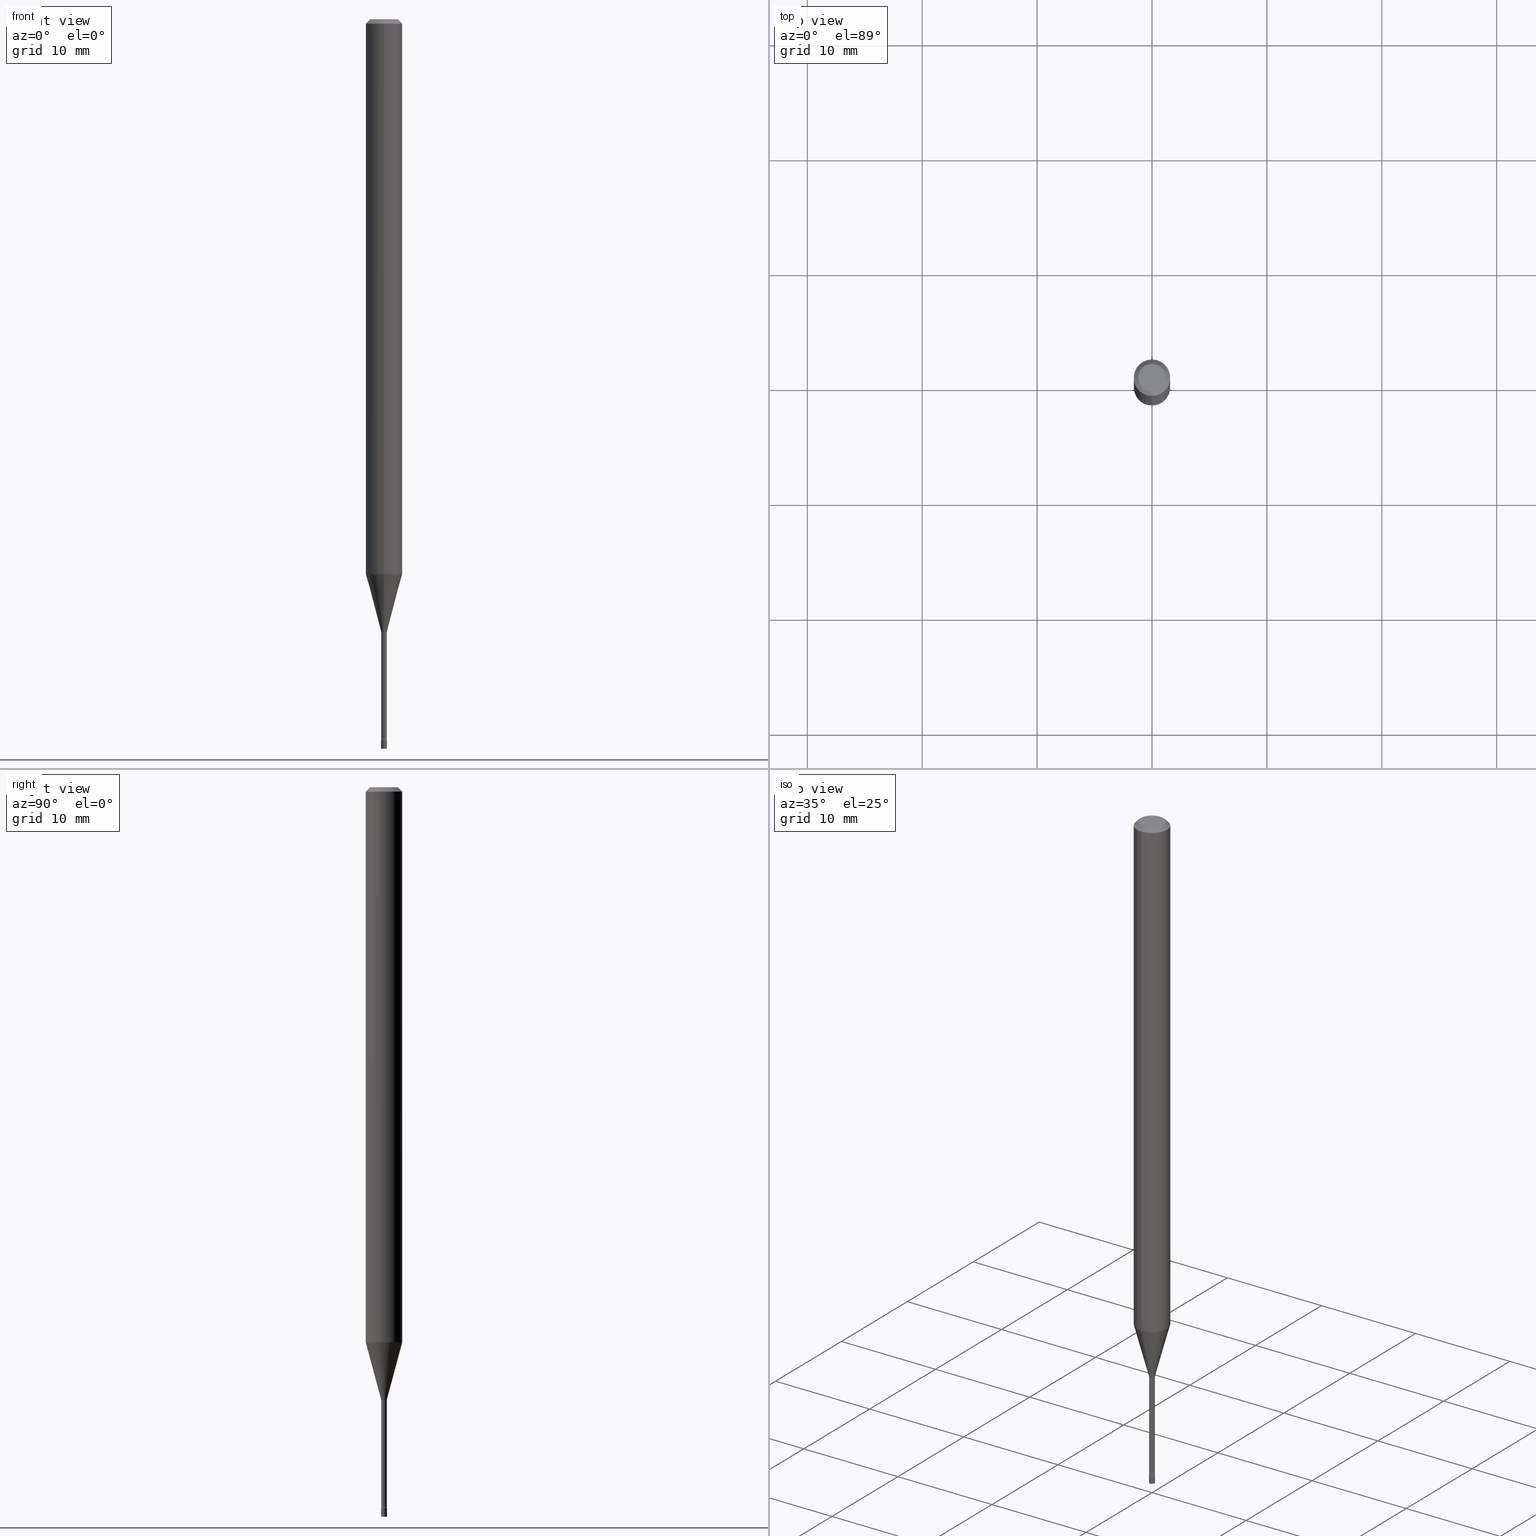
[diagram: canonical four-view strip — front | top / right | iso, engineering-drawing reading convention]
A machine part, canonical four-view strip (front | top / right | iso — engineering-drawing reading convention). The complete STEP part file that produces these views, byte-faithful:
ISO-10303-21;
HEADER;
FILE_DESCRIPTION (( 'STEP AP203' ),
    '1' );
FILE_NAME ('09611.STEP',
    '2024-03-08T23:57:18',
    ( '' ),
    ( '' ),
    'SwSTEP 2.0',
    'SolidWorks 2023',
    '' );
FILE_SCHEMA (( 'CONFIG_CONTROL_DESIGN' ));
ENDSEC;

DATA;
#1 = UNCERTAINTY_MEASURE_WITH_UNIT (LENGTH_MEASURE( 1.000000000000000082E-05 ), #273, 'distance_accuracy_value', 'NONE');
#2 = CARTESIAN_POINT ( 'NONE',  ( -6.563984917019951388E-17, -0.009400000000007339984, -2.101974787463810834 ) ) ;
#3 = DIRECTION ( 'NONE',  ( -2.445468806185136597E-29, 3.491481338843145583E-15, 1.000000000000000000 ) ) ;
#4 = CARTESIAN_POINT ( 'NONE',  ( 0.01000000000000000021, -6.982962677686265724E-17, 4.876176775795935968E-31 ) ) ;
#5 = CIRCLE ( 'NONE', #218, 0.06250000000000000000 ) ;
#6 = VECTOR ( 'NONE', #308, 39.37007874015748143 ) ;
#7 = ORIENTED_EDGE ( 'NONE', *, *, #351, .F. ) ;
#8 = ORIENTED_EDGE ( 'NONE', *, *, #159, .F. ) ;
#9 = EDGE_CURVE ( 'NONE', #446, #299, #5, .T. ) ;
#10 = ORIENTED_EDGE ( 'NONE', *, *, #67, .F. ) ;
#11 = CARTESIAN_POINT ( 'NONE',  ( 5.140456154628203515E-29, -7.338801848172007055E-15, -2.101974787463810834 ) ) ;
#12 = TOROIDAL_SURFACE ( 'NONE', #241, 0.02440000000000000155, 0.01500000000000002373 ) ;
#13 = APPROVAL_PERSON_ORGANIZATION ( #499, #401, #381 ) ;
#14 = FACE_OUTER_BOUND ( 'NONE', #255, .T. ) ;
#15 = CARTESIAN_POINT ( 'NONE',  ( 3.668304814086678845E-31, -5.237076504395302352E-17, -0.01500000000000003067 ) ) ;
#16 = EDGE_LOOP ( 'NONE', ( #85, #252, #212, #250 ) ) ;
#17 = CARTESIAN_POINT ( 'NONE',  ( 6.113672015462842613E-29, -8.728703347107864943E-15, -2.500000000000000000 ) ) ;
#18 = CARTESIAN_POINT ( 'NONE',  ( 0.000000000000000000, 0.000000000000000000, 0.000000000000000000 ) ) ;
#19 = VERTEX_POINT ( 'NONE', #222 ) ;
#20 = APPROVAL_STATUS ( 'not_yet_approved' ) ;
#21 = CARTESIAN_POINT ( 'NONE',  ( 7.105427357607040490E-17, 0.009999999999991376898, -2.470000000000000195 ) ) ;
#22 = ORIENTED_EDGE ( 'NONE', *, *, #309, .T. ) ;
#23 = TOROIDAL_SURFACE ( 'NONE', #518, 0.02440000000000002583, 0.01500000000000000291 ) ;
#24 = CYLINDRICAL_SURFACE ( 'NONE', #46, 0.01000000000000000021 ) ;
#25 = CARTESIAN_POINT ( 'NONE',  ( 3.668304814086678845E-31, -5.237076504395302352E-17, -0.01500000000000003067 ) ) ;
#26 = DATE_TIME_ROLE ( 'creation_date' ) ;
#27 = CARTESIAN_POINT ( 'NONE',  ( 7.042269065260031004E-17, 0.009911112605656658206, -2.098092501787272912 ) ) ;
#28 = ORIENTED_EDGE ( 'NONE', *, *, #288, .F. ) ;
#29 = PRODUCT_DEFINITION ( 'UNKNOWN', '', #208, #354 ) ;
#30 = APPROVAL_ROLE ( '' ) ;
#31 = DIRECTION ( 'NONE',  ( 2.438088387897960049E-29, -3.491481338843145188E-15, -1.000000000000000000 ) ) ;
#32 = CIRCLE ( 'NONE', #320, 0.009911112605663983943 ) ;
#33 = LOCAL_TIME ( 18, 57, 18.00000000000000000, #216 ) ;
#34 = DIRECTION ( 'NONE',  ( -2.445536542724447659E-29, 3.491384336263527933E-15, 1.000000000000000000 ) ) ;
#35 = ADVANCED_FACE ( 'NONE', ( #386 ), #464, .T. ) ;
#36 = DIRECTION ( 'NONE',  ( -2.445536542724447659E-29, 3.491384336263527933E-15, 1.000000000000000000 ) ) ;
#37 = DIRECTION ( 'NONE',  ( -6.982962677686265922E-15, -1.000000000000000000, 0.000000000000000000 ) ) ;
#38 = CARTESIAN_POINT ( 'NONE',  ( 4.440892098500625669E-16, 0.06250000000000000000, -2.182115210164704958E-16 ) ) ;
#39 = SECURITY_CLASSIFICATION ( '', '', #343 ) ;
#40 = FACE_OUTER_BOUND ( 'NONE', #16, .T. ) ;
#41 = CARTESIAN_POINT ( 'NONE',  ( 6.040307951277287977E-29, -8.623958906942569995E-15, -2.470000000000000195 ) ) ;
#42 = EDGE_LOOP ( 'NONE', ( #383, #421, #163, #493 ) ) ;
#43 = ADVANCED_FACE ( 'NONE', ( #278 ), #23, .F. ) ;
#44 = DIRECTION ( 'NONE',  ( -2.445536542724447659E-29, 3.491384336263527933E-15, 1.000000000000000000 ) ) ;
#45 = ORIENTED_EDGE ( 'NONE', *, *, #257, .F. ) ;
#46 = AXIS2_PLACEMENT_3D ( 'NONE', #179, #340, #505 ) ;
#47 = DIRECTION ( 'NONE',  ( 2.445536542724447659E-29, -3.491384336263527933E-15, -1.000000000000000000 ) ) ;
#48 = APPLICATION_CONTEXT ( 'configuration controlled 3d designs of mechanical parts and assemblies' ) ;
#49 = EDGE_CURVE ( 'NONE', #219, #202, #444, .T. ) ;
#50 = ORIENTED_EDGE ( 'NONE', *, *, #419, .T. ) ;
#51 = FACE_OUTER_BOUND ( 'NONE', #377, .T. ) ;
#52 = VERTEX_POINT ( 'NONE', #194 ) ;
#53 = DIRECTION ( 'NONE',  ( -6.982962677686265922E-15, -1.000000000000000000, 3.491384336263527933E-15 ) ) ;
#54 = LINE ( 'NONE', #27, #56 ) ;
#55 = VERTEX_POINT ( 'NONE', #199 ) ;
#56 = VECTOR ( 'NONE', #182, 39.37007874015748854 ) ;
#57 = AXIS2_PLACEMENT_3D ( 'NONE', #269, #117, #439 ) ;
#58 = DIRECTION ( 'NONE',  ( -2.445536542724447659E-29, 3.491384336263527933E-15, 1.000000000000000000 ) ) ;
#59 = ORIENTED_EDGE ( 'NONE', *, *, #309, .F. ) ;
#60 = EDGE_CURVE ( 'NONE', #204, #202, #361, .T. ) ;
#61 = CALENDAR_DATE ( 2024, 8, 3 ) ;
#62 = CARTESIAN_POINT ( 'NONE',  ( 5.140313774130382338E-29, -7.339005745148683013E-15, -2.101974787463810834 ) ) ;
#63 = ORIENTED_EDGE ( 'NONE', *, *, #114, .F. ) ;
#64 = APPROVAL_DATE_TIME ( #422, #140 ) ;
#65 = DIRECTION ( 'NONE',  ( -6.982962677686264344E-15, -1.000000000000000000, 0.000000000000000000 ) ) ;
#66 = ORIENTED_EDGE ( 'NONE', *, *, #211, .T. ) ;
#67 = EDGE_CURVE ( 'NONE', #367, #107, #162, .T. ) ;
#68 = CARTESIAN_POINT ( 'NONE',  ( 0.01000000000000000021, -8.798532973884726663E-15, -2.500000000000000000 ) ) ;
#69 = VERTEX_POINT ( 'NONE', #484 ) ;
#70 = PRODUCT_DEFINITION_SHAPE ( 'NONE', 'NONE',  #29 ) ;
#71 = APPROVAL_DATE_TIME ( #426, #401 ) ;
#72 = DIRECTION ( 'NONE',  ( -2.445536542724447659E-29, 3.491384336263527933E-15, 1.000000000000000000 ) ) ;
#73 = DIRECTION ( 'NONE',  ( -2.445536542724447659E-29, 3.491384336263527933E-15, 1.000000000000000000 ) ) ;
#74 = EDGE_CURVE ( 'NONE', #165, #55, #403, .T. ) ;
#75 = AXIS2_PLACEMENT_3D ( 'NONE', #18, #171, #417 ) ;
#76 = CIRCLE ( 'NONE', #118, 0.01500000000000002373 ) ;
#77 = CARTESIAN_POINT ( 'NONE',  ( 6.892264536879016655E-17, 0.009399999999991416957, -2.465800000000000214 ) ) ;
#78 = CARTESIAN_POINT ( 'NONE',  ( 1.733724275255158309E-16, 0.02439999999999266367, -2.101974787463810834 ) ) ;
#79 = CARTESIAN_POINT ( 'NONE',  ( 5.130961883136935112E-29, -7.325247296772043648E-15, -2.098092501787272912 ) ) ;
#80 = AXIS2_PLACEMENT_3D ( 'NONE', #332, #214, #98 ) ;
#81 = LINE ( 'NONE', #478, #266 ) ;
#82 = AXIS2_PLACEMENT_3D ( 'NONE', #328, #156, #287 ) ;
#83 = EDGE_CURVE ( 'NONE', #374, #132, #441, .T. ) ;
#84 = DIRECTION ( 'NONE',  ( -6.982962677686265922E-15, -1.000000000000000000, 3.491384336263527933E-15 ) ) ;
#85 = ORIENTED_EDGE ( 'NONE', *, *, #310, .F. ) ;
#86 = ADVANCED_FACE ( 'NONE', ( #88 ), #166, .T. ) ;
#87 = CLOSED_SHELL ( 'NONE', ( #120, #483, #495, #174, #155, #35, #225, #389, #86, #203, #365, #43, #457, #149 ) ) ;
#88 = FACE_OUTER_BOUND ( 'NONE', #90, .T. ) ;
#89 = AXIS2_PLACEMENT_3D ( 'NONE', #262, #315, #347 ) ;
#90 = EDGE_LOOP ( 'NONE', ( #319, #157, #410, #172 ) ) ;
#91 = DIRECTION ( 'NONE',  ( -2.445468806185136877E-29, 3.491481338843145188E-15, 1.000000000000000000 ) ) ;
#92 = ORIENTED_EDGE ( 'NONE', *, *, #265, .F. ) ;
#93 = DIRECTION ( 'NONE',  ( -4.851104656540964275E-15, -0.7071067811865500152, -0.7071067811865450192 ) ) ;
#94 = DIRECTION ( 'NONE',  ( 6.982962677686265922E-15, 1.000000000000000000, -3.491384336263527933E-15 ) ) ;
#95 = ORIENTED_EDGE ( 'NONE', *, *, #416, .T. ) ;
#96 = AXIS2_PLACEMENT_3D ( 'NONE', #388, #516, #234 ) ;
#97 = DIRECTION ( 'NONE',  ( -6.982962677686265922E-15, -1.000000000000000000, 3.491384336263528328E-15 ) ) ;
#98 = DIRECTION ( 'NONE',  ( 1.000000000000000000, -6.982962677686235945E-15, 0.000000000000000000 ) ) ;
#99 = ORIENTED_EDGE ( 'NONE', *, *, #67, .T. ) ;
#100 = DIRECTION ( 'NONE',  ( -6.982962677686265922E-15, -1.000000000000000000, 3.483106191921935554E-15 ) ) ;
#101 = EDGE_LOOP ( 'NONE', ( #296, #134 ) ) ;
#102 = FACE_OUTER_BOUND ( 'NONE', #324, .T. ) ;
#103 = EDGE_LOOP ( 'NONE', ( #333, #143, #370, #360 ) ) ;
#104 = APPROVAL_STATUS ( 'not_yet_approved' ) ;
#105 = CC_DESIGN_APPROVAL ( #448, ( #29 ) ) ;
#106 = DIRECTION ( 'NONE',  ( -6.982962677686265922E-15, -1.000000000000000000, 0.000000000000000000 ) ) ;
#107 = VERTEX_POINT ( 'NONE', #368 ) ;
#108 = CARTESIAN_POINT ( 'NONE',  ( 0.000000000000000000, 0.000000000000000000, 0.000000000000000000 ) ) ;
#109 = LINE ( 'NONE', #38, #116 ) ;
#110 = CC_DESIGN_PERSON_AND_ORGANIZATION_ASSIGNMENT ( #331, #316, ( #438 ) ) ;
#111 = VECTOR ( 'NONE', #395, 39.37007874015748143 ) ;
#112 = DIRECTION ( 'NONE',  ( -2.438088387897960049E-29, 3.491481338843145188E-15, 1.000000000000000000 ) ) ;
#113 = DIRECTION ( 'NONE',  ( 1.000000000000000000, -6.982962677686265922E-15, 4.876176775795935793E-29 ) ) ;
#114 = EDGE_CURVE ( 'NONE', #202, #219, #152, .T. ) ;
#115 = DIRECTION ( 'NONE',  ( -6.982962677686265922E-15, -1.000000000000000000, 0.000000000000000000 ) ) ;
#116 = VECTOR ( 'NONE', #268, 39.37007874015748143 ) ;
#117 = DIRECTION ( 'NONE',  ( -2.445536542724447659E-29, 3.491384336263527933E-15, 1.000000000000000000 ) ) ;
#118 = AXIS2_PLACEMENT_3D ( 'NONE', #78, #428, #313 ) ;
#119 = DIRECTION ( 'NONE',  ( -2.445468806185136597E-29, 3.491481338843145583E-15, 1.000000000000000000 ) ) ;
#120 = ADVANCED_FACE ( 'NONE', ( #244 ), #176, .F. ) ;
#121 = CARTESIAN_POINT ( 'NONE',  ( -6.920892941964616469E-17, -0.009911112605671307946, -2.098092501787272912 ) ) ;
#122 = EDGE_CURVE ( 'NONE', #69, #299, #175, .T. ) ;
#123 = ORIENTED_EDGE ( 'NONE', *, *, #471, .F. ) ;
#124 = APPLICATION_CONTEXT ( 'configuration controlled 3d designs of mechanical parts and assemblies' ) ;
#125 = ORIENTED_EDGE ( 'NONE', *, *, #277, .F. ) ;
#126 = LOCAL_TIME ( 18, 57, 18.00000000000000000, #461 ) ;
#127 = ORIENTED_EDGE ( 'NONE', *, *, #60, .F. ) ;
#128 = APPLICATION_PROTOCOL_DEFINITION ( 'international standard', 'config_control_design', 1994, #48 ) ;
#129 = CARTESIAN_POINT ( 'NONE',  ( -0.01000000000000000021, -8.605276853449206598E-15, -2.470000000000000195 ) ) ;
#130 = EDGE_CURVE ( 'NONE', #367, #52, #263, .T. ) ;
#131 = DIRECTION ( 'NONE',  ( -6.982962677686265133E-15, -1.000000000000000000, 0.000000000000000000 ) ) ;
#132 = VERTEX_POINT ( 'NONE', #376 ) ;
#133 = PLANE ( 'NONE',  #254 ) ;
#134 = ORIENTED_EDGE ( 'NONE', *, *, #49, .T. ) ;
#135 = CONICAL_SURFACE ( 'NONE', #206, 0.009911112605663983943, 0.2617993877991500740 ) ;
#136 = AXIS2_PLACEMENT_3D ( 'NONE', #470, #188, #473 ) ;
#137 = PERSON_AND_ORGANIZATION_ROLE ( 'classification_officer' ) ;
#138 = DIRECTION ( 'NONE',  ( 2.445536542724447098E-29, -3.491384336263527933E-15, -1.000000000000000000 ) ) ;
#139 = ORIENTED_EDGE ( 'NONE', *, *, #232, .T. ) ;
#140 = APPROVAL ( #504, 'UNSPECIFIED' ) ;
#141 = COORDINATED_UNIVERSAL_TIME_OFFSET ( 5, 0, .BEHIND. ) ;
#142 = DIRECTION ( 'NONE',  ( -6.982962677686266711E-15, -1.000000000000000000, 3.491384336263528328E-15 ) ) ;
#143 = ORIENTED_EDGE ( 'NONE', *, *, #312, .F. ) ;
#144 = PERSON_AND_ORGANIZATION ( #482, #147 ) ;
#145 = PLANE ( 'NONE',  #197 ) ;
#146 = VERTEX_POINT ( 'NONE', #21 ) ;
#147 = ORGANIZATION ( 'UNSPECIFIED', 'UNSPECIFIED', '' ) ;
#148 = CARTESIAN_POINT ( 'NONE',  ( 5.140456154628203515E-29, -7.338801848172007055E-15, -2.101974787463810834 ) ) ;
#149 = ADVANCED_FACE ( 'NONE', ( #207 ), #12, .F. ) ;
#150 = DIRECTION ( 'NONE',  ( -6.982962677686266711E-15, -1.000000000000000000, 3.491384336263528328E-15 ) ) ;
#151 = DIRECTION ( 'NONE',  ( -6.982962677686265922E-15, -1.000000000000000000, 3.491384336263527933E-15 ) ) ;
#152 = CIRCLE ( 'NONE', #158, 0.01000000000000000021 ) ;
#153 = AXIS2_PLACEMENT_3D ( 'NONE', #267, #193, #408 ) ;
#154 = LINE ( 'NONE', #437, #111 ) ;
#155 = ADVANCED_FACE ( 'NONE', ( #329 ), #496, .T. ) ;
#156 = DIRECTION ( 'NONE',  ( 0.000000000000000000, 0.000000000000000000, 1.000000000000000000 ) ) ;
#157 = ORIENTED_EDGE ( 'NONE', *, *, #416, .F. ) ;
#158 = AXIS2_PLACEMENT_3D ( 'NONE', #164, #282, #424 ) ;
#159 = EDGE_CURVE ( 'NONE', #367, #443, #305, .T. ) ;
#160 = DIRECTION ( 'NONE',  ( -1.807323732225328562E-15, -0.2588190451025179639, 0.9659258262890690894 ) ) ;
#161 = ORIENTED_EDGE ( 'NONE', *, *, #213, .F. ) ;
#162 = LINE ( 'NONE', #121, #280 ) ;
#163 = ORIENTED_EDGE ( 'NONE', *, *, #342, .T. ) ;
#164 = CARTESIAN_POINT ( 'NONE',  ( 6.040307951277287977E-29, -8.623958906942569995E-15, -2.470000000000000195 ) ) ;
#165 = VERTEX_POINT ( 'NONE', #293 ) ;
#166 = CONICAL_SURFACE ( 'NONE', #472, 0.06250000000000000000, 0.7853981633974483900 ) ;
#167 = APPROVAL_PERSON_ORGANIZATION ( #350, #140, #30 ) ;
#168 = CC_DESIGN_PERSON_AND_ORGANIZATION_ASSIGNMENT ( #261, #259, ( #208 ) ) ;
#169 = CARTESIAN_POINT ( 'NONE',  ( 5.140313774130382338E-29, -7.339005745148683013E-15, -2.101974787463810834 ) ) ;
#170 = ORIENTED_EDGE ( 'NONE', *, *, #213, .T. ) ;
#171 = DIRECTION ( 'NONE',  ( -2.445536542724447659E-29, 3.491384336263527933E-15, 1.000000000000000000 ) ) ;
#172 = ORIENTED_EDGE ( 'NONE', *, *, #9, .T. ) ;
#173 = CALENDAR_DATE ( 2024, 8, 3 ) ;
#174 = ADVANCED_FACE ( 'NONE', ( #373 ), #363, .T. ) ;
#175 = LINE ( 'NONE', #409, #498 ) ;
#176 = TOROIDAL_SURFACE ( 'NONE', #314, 0.02440000000000000155, 0.01500000000000002373 ) ;
#177 = EDGE_LOOP ( 'NONE', ( #161, #338, #66, #183 ) ) ;
#178 = APPROVAL_DATE_TIME ( #302, #448 ) ;
#179 = CARTESIAN_POINT ( 'NONE',  ( 0.000000000000000000, 0.000000000000000000, 0.000000000000000000 ) ) ;
#180 = ORIENTED_EDGE ( 'NONE', *, *, #295, .T. ) ;
#181 = PERSON_AND_ORGANIZATION ( #482, #147 ) ;
#182 = DIRECTION ( 'NONE',  ( 1.839019923739598738E-15, 0.2588190451025247363, 0.9659258262890673130 ) ) ;
#183 = ORIENTED_EDGE ( 'NONE', *, *, #489, .F. ) ;
#184 = CALENDAR_DATE ( 2024, 8, 3 ) ;
#185 = CARTESIAN_POINT ( 'NONE',  ( 6.040307951277287977E-29, -8.623958906942569995E-15, -2.470000000000000195 ) ) ;
#186 = CIRCLE ( 'NONE', #80, 0.01000000000000000021 ) ;
#187 = CIRCLE ( 'NONE', #220, 0.01000000000000000021 ) ;
#188 = DIRECTION ( 'NONE',  ( 1.000000000000000000, -7.105427357601001070E-15, 4.926314320603096360E-29 ) ) ;
#189 = DIRECTION ( 'NONE',  ( -6.982962677686265922E-15, -1.000000000000000000, 0.000000000000000000 ) ) ;
#190 = FACE_OUTER_BOUND ( 'NONE', #200, .T. ) ;
#191 = AXIS2_PLACEMENT_3D ( 'NONE', #298, #459, #100 ) ;
#192 = AXIS2_PLACEMENT_3D ( 'NONE', #390, #34, #150 ) ;
#193 = DIRECTION ( 'NONE',  ( -2.445536542724447659E-29, 3.491384336263527933E-15, 1.000000000000000000 ) ) ;
#194 = CARTESIAN_POINT ( 'NONE',  ( 2.572559502513548516E-16, 0.009911112605656658206, -2.098092501787272912 ) ) ;
#195 = ORIENTED_EDGE ( 'NONE', *, *, #265, .T. ) ;
#196 = EDGE_CURVE ( 'NONE', #204, #19, #186, .T. ) ;
#197 = AXIS2_PLACEMENT_3D ( 'NONE', #185, #112, #113 ) ;
#198 = CIRCLE ( 'NONE', #501, 0.01000000000000000021 ) ;
#199 = CARTESIAN_POINT ( 'NONE',  ( -6.982962677680226008E-17, -0.01000000000000862178, -2.470000000000000195 ) ) ;
#200 = EDGE_LOOP ( 'NONE', ( #125, #425, #195, #290 ) ) ;
#201 = CARTESIAN_POINT ( 'NONE',  ( 3.668304814086678845E-31, -5.237076504395302352E-17, -0.01500000000000003067 ) ) ;
#202 = VERTEX_POINT ( 'NONE', #451 ) ;
#203 = ADVANCED_FACE ( 'NONE', ( #102 ), #133, .F. ) ;
#204 = VERTEX_POINT ( 'NONE', #68 ) ;
#205 = CARTESIAN_POINT ( 'NONE',  ( 4.440892098501093562E-16, 0.06249999999999993755, -0.01500000000000024751 ) ) ;
#206 = AXIS2_PLACEMENT_3D ( 'NONE', #420, #58, #65 ) ;
#207 = FACE_OUTER_BOUND ( 'NONE', #286, .T. ) ;
#208 = PRODUCT_DEFINITION_FORMATION_WITH_SPECIFIED_SOURCE ( 'ANY', '', #438, .NOT_KNOWN. ) ;
#209 = ORIENTED_EDGE ( 'NONE', *, *, #310, .T. ) ;
#210 = DIRECTION ( 'NONE',  ( -2.445468806185136597E-29, 3.491481338843145583E-15, 1.000000000000000000 ) ) ;
#211 = EDGE_CURVE ( 'NONE', #299, #446, #372, .T. ) ;
#212 = ORIENTED_EDGE ( 'NONE', *, *, #60, .T. ) ;
#213 = EDGE_CURVE ( 'NONE', #69, #279, #488, .T. ) ;
#214 = DIRECTION ( 'NONE',  ( -2.445468806185136597E-29, 3.491481338843145583E-15, 1.000000000000000000 ) ) ;
#215 = ORIENTED_EDGE ( 'NONE', *, *, #312, .T. ) ;
#216 = COORDINATED_UNIVERSAL_TIME_OFFSET ( 5, 0, .BEHIND. ) ;
#217 = FACE_OUTER_BOUND ( 'NONE', #406, .T. ) ;
#218 = AXIS2_PLACEMENT_3D ( 'NONE', #25, #341, #463 ) ;
#219 = VERTEX_POINT ( 'NONE', #129 ) ;
#220 = AXIS2_PLACEMENT_3D ( 'NONE', #17, #3, #248 ) ;
#221 = DIRECTION ( 'NONE',  ( -2.445536542724447659E-29, 3.491384336263527933E-15, 1.000000000000000000 ) ) ;
#222 = CARTESIAN_POINT ( 'NONE',  ( -0.01000000000000000021, -8.605276853449206598E-15, -2.500000000000000000 ) ) ;
#223 = PERSON_AND_ORGANIZATION_ROLE ( 'design_supplier' ) ;
#224 = PLANE ( 'NONE',  #96 ) ;
#225 = ADVANCED_FACE ( 'NONE', ( #251 ), #135, .T. ) ;
#226 = DATE_AND_TIME ( #61, #126 ) ;
#227 = DIRECTION ( 'NONE',  ( -6.982962677686265922E-15, -1.000000000000000000, 0.000000000000000000 ) ) ;
#228 = VECTOR ( 'NONE', #91, 39.37007874015748143 ) ;
#229 = ADVANCED_FACE ( 'NONE', ( #217 ), #24, .T. ) ;
#230 = FACE_OUTER_BOUND ( 'NONE', #101, .T. ) ;
#231 = EDGE_CURVE ( 'NONE', #456, #107, #511, .T. ) ;
#232 = EDGE_CURVE ( 'NONE', #52, #456, #54, .T. ) ;
#233 = CC_DESIGN_PERSON_AND_ORGANIZATION_ASSIGNMENT ( #144, #137, ( #39 ) ) ;
#234 = DIRECTION ( 'NONE',  ( -6.982962677686265922E-15, -1.000000000000000000, 3.491384336263527933E-15 ) ) ;
#235 = CARTESIAN_POINT ( 'NONE',  ( 6.030204007049943435E-29, -8.609055496358607345E-15, -2.465800000000000214 ) ) ;
#236 = AXIS2_PLACEMENT_3D ( 'NONE', #379, #382, #337 ) ;
#237 = CIRCLE ( 'NONE', #264, 0.009400000000000002104 ) ;
#238 = CYLINDRICAL_SURFACE ( 'NONE', #57, 0.009400000000000012512 ) ;
#239 = CARTESIAN_POINT ( 'NONE',  ( 6.679101716144950638E-17, 0.009400000000000012512, -3.281901276087720893E-17 ) ) ;
#240 = ORIENTED_EDGE ( 'NONE', *, *, #396, .F. ) ;
#241 = AXIS2_PLACEMENT_3D ( 'NONE', #169, #249, #253 ) ;
#242 = EDGE_LOOP ( 'NONE', ( #442, #139, #418, #10 ) ) ;
#243 =( NAMED_UNIT ( * ) SI_UNIT ( $, .STERADIAN. ) SOLID_ANGLE_UNIT ( ) );
#244 = FACE_OUTER_BOUND ( 'NONE', #467, .T. ) ;
#245 = AXIS2_PLACEMENT_3D ( 'NONE', #514, #31, #508 ) ;
#246 = ORIENTED_EDGE ( 'NONE', *, *, #159, .T. ) ;
#247 = CC_DESIGN_PERSON_AND_ORGANIZATION_ASSIGNMENT ( #181, #223, ( #208 ) ) ;
#248 = DIRECTION ( 'NONE',  ( 1.000000000000000000, -6.982962677686235945E-15, 0.000000000000000000 ) ) ;
#249 = DIRECTION ( 'NONE',  ( -2.445536542724447659E-29, 3.491384336263527933E-15, 1.000000000000000000 ) ) ;
#250 = ORIENTED_EDGE ( 'NONE', *, *, #49, .F. ) ;
#251 = FACE_OUTER_BOUND ( 'NONE', #460, .T. ) ;
#252 = ORIENTED_EDGE ( 'NONE', *, *, #471, .T. ) ;
#253 = DIRECTION ( 'NONE',  ( -6.982962677686265922E-15, -1.000000000000000000, 3.491384336263527933E-15 ) ) ;
#254 = AXIS2_PLACEMENT_3D ( 'NONE', #455, #138, #94 ) ;
#255 = EDGE_LOOP ( 'NONE', ( #215, #503, #59, #414 ) ) ;
#256 = CALENDAR_DATE ( 2024, 8, 3 ) ;
#257 = EDGE_CURVE ( 'NONE', #374, #165, #348, .T. ) ;
#258 = LINE ( 'NONE', #435, #6 ) ;
#259 = PERSON_AND_ORGANIZATION_ROLE ( 'creator' ) ;
#260 = CARTESIAN_POINT ( 'NONE',  ( -6.920892941964616469E-17, -0.009911112605671307946, -2.098092501787272912 ) ) ;
#261 = PERSON_AND_ORGANIZATION ( #482, #147 ) ;
#262 = CARTESIAN_POINT ( 'NONE',  ( 6.040475260529386236E-29, -8.623719310570914180E-15, -2.470000000000000195 ) ) ;
#263 = CIRCLE ( 'NONE', #236, 0.009911112605663983943 ) ;
#264 = AXIS2_PLACEMENT_3D ( 'NONE', #11, #291, #115 ) ;
#265 = EDGE_CURVE ( 'NONE', #107, #299, #154, .T. ) ;
#266 = VECTOR ( 'NONE', #317, 39.37007874015748143 ) ;
#267 = CARTESIAN_POINT ( 'NONE',  ( 4.650990121710079435E-29, -6.640012846000903437E-15, -1.901828102118093167 ) ) ;
#268 = DIRECTION ( 'NONE',  ( -2.445536542724447659E-29, 3.491384336263527933E-15, 1.000000000000000000 ) ) ;
#269 = CARTESIAN_POINT ( 'NONE',  ( 0.000000000000000000, 0.000000000000000000, 0.000000000000000000 ) ) ;
#270 = DIRECTION ( 'NONE',  ( -2.445536542724447659E-29, 3.491384336263527933E-15, 1.000000000000000000 ) ) ;
#271 = AXIS2_PLACEMENT_3D ( 'NONE', #385, #221, #462 ) ;
#272 = CIRCLE ( 'NONE', #349, 0.009400000000000024655 ) ;
#273 =( CONVERSION_BASED_UNIT ( 'INCH', #375 ) LENGTH_UNIT ( ) NAMED_UNIT ( #515 ) );
#274 = ADVANCED_FACE ( 'NONE', ( #230 ), #145, .T. ) ;
#275 = DIRECTION ( 'NONE',  ( 1.000000000000000000, -6.982962677686235945E-15, 0.000000000000000000 ) ) ;
#276 = DIRECTION ( 'NONE',  ( -1.000000000000000000, 6.982962677686265922E-15, -4.883557194083112901E-29 ) ) ;
#277 = EDGE_CURVE ( 'NONE', #456, #446, #109, .T. ) ;
#278 = FACE_OUTER_BOUND ( 'NONE', #103, .T. ) ;
#279 = VERTEX_POINT ( 'NONE', #432 ) ;
#280 = VECTOR ( 'NONE', #160, 39.37007874015748854 ) ;
#281 = CIRCLE ( 'NONE', #364, 0.009400000000000002104 ) ;
#282 = DIRECTION ( 'NONE',  ( -2.445468806185136597E-29, 3.491481338843145583E-15, 1.000000000000000000 ) ) ;
#283 = ORIENTED_EDGE ( 'NONE', *, *, #196, .F. ) ;
#284 = MECHANICAL_CONTEXT ( 'NONE', #48, 'mechanical' ) ;
#285 = DIRECTION ( 'NONE',  ( -1.000000000000000000, 6.982962677686265922E-15, -4.883557194083112901E-29 ) ) ;
#286 = EDGE_LOOP ( 'NONE', ( #240, #487, #246, #22 ) ) ;
#287 = DIRECTION ( 'NONE',  ( 1.000000000000000000, 0.000000000000000000, 0.000000000000000000 ) ) ;
#288 = EDGE_CURVE ( 'NONE', #52, #367, #32, .T. ) ;
#289 = CARTESIAN_POINT ( 'NONE',  ( 7.072129387646011672E-46, -1.009656626948158031E-31, -2.891851855040085948E-17 ) ) ;
#290 = ORIENTED_EDGE ( 'NONE', *, *, #9, .F. ) ;
#291 = DIRECTION ( 'NONE',  ( -2.445536542724447659E-29, 3.491384336263527933E-15, 1.000000000000000000 ) ) ;
#292 = AXIS2_PLACEMENT_3D ( 'NONE', #322, #276, #486 ) ;
#293 = CARTESIAN_POINT ( 'NONE',  ( -6.563984917019076245E-17, -0.009400000000008634088, -2.465800000000000214 ) ) ;
#294 = AXIS2_PLACEMENT_3D ( 'NONE', #447, #450, #97 ) ;
#295 = EDGE_CURVE ( 'NONE', #146, #55, #431, .T. ) ;
#296 = ORIENTED_EDGE ( 'NONE', *, *, #114, .T. ) ;
#297 = DATE_AND_TIME ( #507, #356 ) ;
#298 = CARTESIAN_POINT ( 'NONE',  ( 3.668304814086678845E-31, -5.237076504395302352E-17, -0.01500000000000003067 ) ) ;
#299 = VERTEX_POINT ( 'NONE', #304 ) ;
#300 = DIRECTION ( 'NONE',  ( -2.445536542724447659E-29, 3.491384336263527933E-15, 1.000000000000000000 ) ) ;
#301 = ORIENTED_EDGE ( 'NONE', *, *, #430, .T. ) ;
#302 = DATE_AND_TIME ( #173, #33 ) ;
#303 = ADVANCED_FACE ( 'NONE', ( #475 ), #344, .T. ) ;
#304 = CARTESIAN_POINT ( 'NONE',  ( -4.364351673553912750E-16, -0.06250000000000005551, -0.01499999999999981209 ) ) ;
#305 = CIRCLE ( 'NONE', #480, 0.01500000000000002373 ) ;
#306 = ORIENTED_EDGE ( 'NONE', *, *, #396, .T. ) ;
#307 = LOCAL_TIME ( 18, 57, 18.00000000000000000, #458 ) ;
#308 = DIRECTION ( 'NONE',  ( -2.445536542724447659E-29, 3.491384336263527933E-15, 1.000000000000000000 ) ) ;
#309 = EDGE_CURVE ( 'NONE', #443, #132, #281, .T. ) ;
#310 = EDGE_CURVE ( 'NONE', #19, #219, #513, .T. ) ;
#311 = CARTESIAN_POINT ( 'NONE',  ( 6.030204007049943435E-29, -8.609055496358607345E-15, -2.465800000000000214 ) ) ;
#312 = EDGE_CURVE ( 'NONE', #165, #374, #272, .T. ) ;
#313 = DIRECTION ( 'NONE',  ( 7.105427357600999492E-15, 1.000000000000000000, 0.000000000000000000 ) ) ;
#314 = AXIS2_PLACEMENT_3D ( 'NONE', #62, #300, #492 ) ;
#315 = DIRECTION ( 'NONE',  ( -2.445536542724447659E-29, 3.491384336263527933E-15, 1.000000000000000000 ) ) ;
#316 = PERSON_AND_ORGANIZATION_ROLE ( 'design_owner' ) ;
#317 = DIRECTION ( 'NONE',  ( 4.937700262164548042E-15, 0.7071067811865451302, -0.7071067811865499042 ) ) ;
#318 = DIRECTION ( 'NONE',  ( -6.982962677686264344E-15, -1.000000000000000000, 0.000000000000000000 ) ) ;
#319 = ORIENTED_EDGE ( 'NONE', *, *, #122, .F. ) ;
#320 = AXIS2_PLACEMENT_3D ( 'NONE', #79, #393, #519 ) ;
#321 = CC_DESIGN_APPROVAL ( #140, ( #39 ) ) ;
#322 = CARTESIAN_POINT ( 'NONE',  ( -1.703842893354847853E-16, -0.02440000000000863700, -2.465800000000000214 ) ) ;
#323 = CC_DESIGN_DATE_AND_TIME_ASSIGNMENT ( #297, #26, ( #29 ) ) ;
#324 = EDGE_LOOP ( 'NONE', ( #95, #170 ) ) ;
#325 =( LENGTH_UNIT ( ) NAMED_UNIT ( * ) SI_UNIT ( $, .METRE. ) );
#326 = VECTOR ( 'NONE', #402, 39.37007874015748143 ) ;
#327 = EDGE_LOOP ( 'NONE', ( #7, #380 ) ) ;
#328 = CARTESIAN_POINT ( 'NONE',  ( 0.000000000000000000, 0.000000000000000000, 0.000000000000000000 ) ) ;
#329 = FACE_OUTER_BOUND ( 'NONE', #400, .T. ) ;
#330 = ORIENTED_EDGE ( 'NONE', *, *, #196, .T. ) ;
#331 = PERSON_AND_ORGANIZATION ( #482, #147 ) ;
#332 = CARTESIAN_POINT ( 'NONE',  ( 6.113672015462842613E-29, -8.728703347107864943E-15, -2.500000000000000000 ) ) ;
#333 = ORIENTED_EDGE ( 'NONE', *, *, #419, .F. ) ;
#334 = PERSON_AND_ORGANIZATION_ROLE ( 'creator' ) ;
#335 = CLOSED_SHELL ( 'NONE', ( #229, #274, #517, #303 ) ) ;
#336 = CC_DESIGN_SECURITY_CLASSIFICATION ( #39, ( #208 ) ) ;
#337 = DIRECTION ( 'NONE',  ( -6.982962677686264344E-15, -1.000000000000000000, 0.000000000000000000 ) ) ;
#338 = ORIENTED_EDGE ( 'NONE', *, *, #122, .T. ) ;
#339 = COORDINATED_UNIVERSAL_TIME_OFFSET ( 5, 0, .BEHIND. ) ;
#340 = DIRECTION ( 'NONE',  ( -2.445468806185136597E-29, 3.491481338843145583E-15, 1.000000000000000000 ) ) ;
#341 = DIRECTION ( 'NONE',  ( -2.445536542724447659E-29, 3.491384336263527933E-15, 1.000000000000000000 ) ) ;
#342 = EDGE_CURVE ( 'NONE', #165, #443, #258, .T. ) ;
#343 = SECURITY_CLASSIFICATION_LEVEL ( 'unclassified' ) ;
#344 = PLANE ( 'NONE',  #245 ) ;
#345 = ORIENTED_EDGE ( 'NONE', *, *, #74, .F. ) ;
#346 = SHAPE_DEFINITION_REPRESENTATION ( #70, #440 ) ;
#347 = DIRECTION ( 'NONE',  ( -6.982962677686265922E-15, -1.000000000000000000, 0.000000000000000000 ) ) ;
#348 = CIRCLE ( 'NONE', #433, 0.009400000000000024655 ) ;
#349 = AXIS2_PLACEMENT_3D ( 'NONE', #311, #73, #227 ) ;
#350 = PERSON_AND_ORGANIZATION ( #482, #147 ) ;
#351 = EDGE_CURVE ( 'NONE', #55, #146, #198, .T. ) ;
#352 = CARTESIAN_POINT ( 'NONE',  ( -0.01000000000000000021, 7.105427357601002007E-17, -4.918935090254906272E-31 ) ) ;
#353 = FACE_OUTER_BOUND ( 'NONE', #327, .T. ) ;
#354 = DESIGN_CONTEXT ( 'detailed design', #124, 'design' ) ;
#355 = DIRECTION ( 'NONE',  ( -2.445536542724447659E-29, 3.491384336263527933E-15, 1.000000000000000000 ) ) ;
#356 = LOCAL_TIME ( 18, 57, 18.00000000000000000, #339 ) ;
#357 = CARTESIAN_POINT ( 'NONE',  ( 6.030036982291310238E-29, -8.609294685319429365E-15, -2.465800000000000214 ) ) ;
#358 = CC_DESIGN_PERSON_AND_ORGANIZATION_ASSIGNMENT ( #384, #334, ( #29 ) ) ;
#359 =( NAMED_UNIT ( * ) PLANE_ANGLE_UNIT ( ) SI_UNIT ( $, .RADIAN. ) );
#360 = ORIENTED_EDGE ( 'NONE', *, *, #351, .T. ) ;
#361 = LINE ( 'NONE', #4, #228 ) ;
#362 = EDGE_LOOP ( 'NONE', ( #283, #123 ) ) ;
#363 = CONICAL_SURFACE ( 'NONE', #423, 0.06250000000000000000, 0.7853981633974483900 ) ;
#364 = AXIS2_PLACEMENT_3D ( 'NONE', #148, #466, #189 ) ;
#365 = ADVANCED_FACE ( 'NONE', ( #353 ), #224, .F. ) ;
#366 = DIRECTION ( 'NONE',  ( 6.982962677686265922E-15, 1.000000000000000000, -3.483106191921935554E-15 ) ) ;
#367 = VERTEX_POINT ( 'NONE', #260 ) ;
#368 = CARTESIAN_POINT ( 'NONE',  ( -4.364351673553451266E-16, -0.06250000000000664746, -1.901828102118092945 ) ) ;
#369 = CYLINDRICAL_SURFACE ( 'NONE', #294, 0.009400000000000012512 ) ;
#370 = ORIENTED_EDGE ( 'NONE', *, *, #74, .T. ) ;
#371 = CYLINDRICAL_SURFACE ( 'NONE', #500, 0.01000000000000000021 ) ;
#372 = CIRCLE ( 'NONE', #191, 0.06250000000000000000 ) ;
#373 = FACE_OUTER_BOUND ( 'NONE', #177, .T. ) ;
#374 = VERTEX_POINT ( 'NONE', #77 ) ;
#375 = LENGTH_MEASURE_WITH_UNIT ( LENGTH_MEASURE( 0.02539999999999999897 ), #325 );
#376 = CARTESIAN_POINT ( 'NONE',  ( 6.679101716150981726E-17, 0.009399999999992662489, -2.101974787463810834 ) ) ;
#377 = EDGE_LOOP ( 'NONE', ( #45, #50, #180, #345 ) ) ;
#378 = APPROVAL_ROLE ( '' ) ;
#379 = CARTESIAN_POINT ( 'NONE',  ( 5.130961883136935112E-29, -7.325247296772043648E-15, -2.098092501787272912 ) ) ;
#380 = ORIENTED_EDGE ( 'NONE', *, *, #295, .F. ) ;
#381 = APPROVAL_ROLE ( '' ) ;
#382 = DIRECTION ( 'NONE',  ( -2.445536542724447659E-29, 3.491384336263527933E-15, 1.000000000000000000 ) ) ;
#383 = ORIENTED_EDGE ( 'NONE', *, *, #83, .F. ) ;
#384 = PERSON_AND_ORGANIZATION ( #482, #147 ) ;
#385 = CARTESIAN_POINT ( 'NONE',  ( 4.650990121710079435E-29, -6.640012846000903437E-15, -1.901828102118093167 ) ) ;
#386 = FACE_OUTER_BOUND ( 'NONE', #242, .T. ) ;
#387 = DATE_TIME_ROLE ( 'classification_date' ) ;
#388 = CARTESIAN_POINT ( 'NONE',  ( 6.982962677692306673E-17, 0.009999999999991375163, -2.470000000000000195 ) ) ;
#389 = ADVANCED_FACE ( 'NONE', ( #190 ), #469, .T. ) ;
#390 = CARTESIAN_POINT ( 'NONE',  ( 7.072129387646011672E-46, -1.009656626948158031E-31, -2.891851855040085948E-17 ) ) ;
#391 = AXIS2_PLACEMENT_3D ( 'NONE', #429, #270, #318 ) ;
#392 = CIRCLE ( 'NONE', #136, 0.01500000000000000638 ) ;
#393 = DIRECTION ( 'NONE',  ( -2.445536542724447659E-29, 3.491384336263527933E-15, 1.000000000000000000 ) ) ;
#394 = DIRECTION ( 'NONE',  ( -2.445468806185136877E-29, 3.491481338843145188E-15, 1.000000000000000000 ) ) ;
#395 = DIRECTION ( 'NONE',  ( -2.445536542724447659E-29, 3.491384336263527933E-15, 1.000000000000000000 ) ) ;
#396 = EDGE_CURVE ( 'NONE', #52, #132, #76, .T. ) ;
#397 = TOROIDAL_SURFACE ( 'NONE', #412, 0.02440000000000002583, 0.01500000000000000291 ) ;
#398 = DIRECTION ( 'NONE',  ( -2.445536542724447659E-29, 3.491384336263527933E-15, 1.000000000000000000 ) ) ;
#399 = MANIFOLD_SOLID_BREP ( 'Body-Move/Copy2[1]', #335 ) ;
#400 = EDGE_LOOP ( 'NONE', ( #301, #452, #407, #92 ) ) ;
#401 = APPROVAL ( #104, 'UNSPECIFIED' ) ;
#402 = DIRECTION ( 'NONE',  ( -2.445536542724447659E-29, 3.491384336263527933E-15, 1.000000000000000000 ) ) ;
#403 = CIRCLE ( 'NONE', #292, 0.01499999999999999771 ) ;
#404 = CIRCLE ( 'NONE', #192, 0.04749999999999999362 ) ;
#405 = MANIFOLD_SOLID_BREP ( 'Body-Move/Copy2[2]', #87 ) ;
#406 = EDGE_LOOP ( 'NONE', ( #330, #209, #63, #127 ) ) ;
#407 = ORIENTED_EDGE ( 'NONE', *, *, #211, .F. ) ;
#408 = DIRECTION ( 'NONE',  ( -6.982962677686265922E-15, -1.000000000000000000, 4.370956789862821150E-15 ) ) ;
#409 = CARTESIAN_POINT ( 'NONE',  ( -4.287811248607203282E-16, -0.06250000000000005551, -0.01499999999999981209 ) ) ;
#410 = ORIENTED_EDGE ( 'NONE', *, *, #489, .T. ) ;
#411 = AXIS2_PLACEMENT_3D ( 'NONE', #41, #119, #275 ) ;
#412 = AXIS2_PLACEMENT_3D ( 'NONE', #357, #398, #53 ) ;
#413 = DIRECTION ( 'NONE',  ( -2.445536542724447659E-29, 3.491384336263527933E-15, 1.000000000000000000 ) ) ;
#414 = ORIENTED_EDGE ( 'NONE', *, *, #342, .F. ) ;
#415 = CARTESIAN_POINT ( 'NONE',  ( 0.000000000000000000, 0.000000000000000000, 0.000000000000000000 ) ) ;
#416 = EDGE_CURVE ( 'NONE', #279, #69, #404, .T. ) ;
#417 = DIRECTION ( 'NONE',  ( -6.982962677686265922E-15, -1.000000000000000000, 3.491384336263527933E-15 ) ) ;
#418 = ORIENTED_EDGE ( 'NONE', *, *, #430, .F. ) ;
#419 = EDGE_CURVE ( 'NONE', #374, #146, #392, .T. ) ;
#420 = CARTESIAN_POINT ( 'NONE',  ( 5.130961883136935112E-29, -7.325247296772043648E-15, -2.098092501787272912 ) ) ;
#421 = ORIENTED_EDGE ( 'NONE', *, *, #257, .T. ) ;
#422 = DATE_AND_TIME ( #184, #474 ) ;
#423 = AXIS2_PLACEMENT_3D ( 'NONE', #15, #490, #502 ) ;
#424 = DIRECTION ( 'NONE',  ( 1.000000000000000000, -6.982962677686235945E-15, 0.000000000000000000 ) ) ;
#425 = ORIENTED_EDGE ( 'NONE', *, *, #231, .T. ) ;
#426 = DATE_AND_TIME ( #256, #307 ) ;
#427 = CARTESIAN_POINT ( 'NONE',  ( 6.040475260529386236E-29, -8.623719310570914180E-15, -2.470000000000000195 ) ) ;
#428 = DIRECTION ( 'NONE',  ( 1.000000000000000000, -7.105427357601001070E-15, 4.926314320603096360E-29 ) ) ;
#429 = CARTESIAN_POINT ( 'NONE',  ( 5.130961883136935112E-29, -7.325247296772043648E-15, -2.098092501787272912 ) ) ;
#430 = EDGE_CURVE ( 'NONE', #107, #456, #434, .T. ) ;
#431 = CIRCLE ( 'NONE', #89, 0.01000000000000000021 ) ;
#432 = CARTESIAN_POINT ( 'NONE',  ( 3.840629472727447874E-16, 0.04749999999999999362, -1.947592745229184365E-16 ) ) ;
#433 = AXIS2_PLACEMENT_3D ( 'NONE', #235, #36, #106 ) ;
#434 = CIRCLE ( 'NONE', #153, 0.06250000000000000000 ) ;
#435 = CARTESIAN_POINT ( 'NONE',  ( -6.563984917025098705E-17, -0.009400000000000012512, 3.281901276087720893E-17 ) ) ;
#436 = CC_DESIGN_DATE_AND_TIME_ASSIGNMENT ( #226, #387, ( #39 ) ) ;
#437 = CARTESIAN_POINT ( 'NONE',  ( -4.364351673553916201E-16, -0.06250000000000000000, 2.182115210164704958E-16 ) ) ;
#438 = PRODUCT ( '09611', '09611', '', ( #284 ) ) ;
#439 = DIRECTION ( 'NONE',  ( -6.982962677686265922E-15, -1.000000000000000000, 3.491384336263528328E-15 ) ) ;
#440 = ADVANCED_BREP_SHAPE_REPRESENTATION ( '09611', ( #399, #405, #82 ), #481 ) ;
#441 = LINE ( 'NONE', #239, #326 ) ;
#442 = ORIENTED_EDGE ( 'NONE', *, *, #130, .T. ) ;
#443 = VERTEX_POINT ( 'NONE', #2 ) ;
#444 = CIRCLE ( 'NONE', #411, 0.01000000000000000021 ) ;
#445 = APPROVAL_PERSON_ORGANIZATION ( #468, #448, #378 ) ;
#446 = VERTEX_POINT ( 'NONE', #205 ) ;
#447 = CARTESIAN_POINT ( 'NONE',  ( 0.000000000000000000, 0.000000000000000000, 0.000000000000000000 ) ) ;
#448 = APPROVAL ( #20, 'UNSPECIFIED' ) ;
#449 = CARTESIAN_POINT ( 'NONE',  ( -1.703842893354934874E-16, -0.02440000000000733943, -2.101974787463810834 ) ) ;
#450 = DIRECTION ( 'NONE',  ( -2.445536542724447659E-29, 3.491384336263527933E-15, 1.000000000000000000 ) ) ;
#451 = CARTESIAN_POINT ( 'NONE',  ( 0.01000000000000000021, -8.693788533719433294E-15, -2.470000000000000195 ) ) ;
#452 = ORIENTED_EDGE ( 'NONE', *, *, #277, .T. ) ;
#453 = DIRECTION ( 'NONE',  ( 1.000000000000000000, -6.982962677686265922E-15, 4.876176775795935793E-29 ) ) ;
#454 = AXIS2_PLACEMENT_3D ( 'NONE', #289, #413, #142 ) ;
#455 = CARTESIAN_POINT ( 'NONE',  ( 3.316907271900976096E-16, 0.04749999999999999362, -1.803000152477179914E-16 ) ) ;
#456 = VERTEX_POINT ( 'NONE', #491 ) ;
#457 = ADVANCED_FACE ( 'NONE', ( #494 ), #369, .T. ) ;
#458 = COORDINATED_UNIVERSAL_TIME_OFFSET ( 5, 0, .BEHIND. ) ;
#459 = DIRECTION ( 'NONE',  ( -2.445536542724447659E-29, 3.491384336263527933E-15, 1.000000000000000000 ) ) ;
#460 = EDGE_LOOP ( 'NONE', ( #485, #506, #99, #509 ) ) ;
#461 = COORDINATED_UNIVERSAL_TIME_OFFSET ( 5, 0, .BEHIND. ) ;
#462 = DIRECTION ( 'NONE',  ( -6.982962677686265922E-15, -1.000000000000000000, 4.370956789862821150E-15 ) ) ;
#463 = DIRECTION ( 'NONE',  ( -6.982962677686265922E-15, -1.000000000000000000, 3.483106191921935554E-15 ) ) ;
#464 = CONICAL_SURFACE ( 'NONE', #391, 0.009911112605663983943, 0.2617993877991500740 ) ;
#465 = AXIS2_PLACEMENT_3D ( 'NONE', #108, #355, #151 ) ;
#466 = DIRECTION ( 'NONE',  ( -2.445536542724447659E-29, 3.491384336263527933E-15, 1.000000000000000000 ) ) ;
#467 = EDGE_LOOP ( 'NONE', ( #28, #306, #497, #8 ) ) ;
#468 = PERSON_AND_ORGANIZATION ( #482, #147 ) ;
#469 = CYLINDRICAL_SURFACE ( 'NONE', #465, 0.06250000000000000000 ) ;
#470 = CARTESIAN_POINT ( 'NONE',  ( 1.733724275255249028E-16, 0.02439999999999141814, -2.465800000000000214 ) ) ;
#471 = EDGE_CURVE ( 'NONE', #19, #204, #187, .T. ) ;
#472 = AXIS2_PLACEMENT_3D ( 'NONE', #201, #47, #366 ) ;
#473 = DIRECTION ( 'NONE',  ( 7.105427357600997914E-15, 1.000000000000000000, 0.000000000000000000 ) ) ;
#474 = LOCAL_TIME ( 18, 57, 18.00000000000000000, #141 ) ;
#475 = FACE_OUTER_BOUND ( 'NONE', #362, .T. ) ;
#476 = APPLICATION_PROTOCOL_DEFINITION ( 'international standard', 'config_control_design', 1994, #124 ) ;
#477 = EDGE_CURVE ( 'NONE', #132, #443, #237, .T. ) ;
#478 = CARTESIAN_POINT ( 'NONE',  ( 4.364351673553919652E-16, 0.06249999999999995143, -0.01500000000000024751 ) ) ;
#479 = CARTESIAN_POINT ( 'NONE',  ( 6.030036982291310238E-29, -8.609294685319429365E-15, -2.465800000000000214 ) ) ;
#480 = AXIS2_PLACEMENT_3D ( 'NONE', #449, #285, #131 ) ;
#481 =( GEOMETRIC_REPRESENTATION_CONTEXT ( 3 ) GLOBAL_UNCERTAINTY_ASSIGNED_CONTEXT ( ( #1 ) ) GLOBAL_UNIT_ASSIGNED_CONTEXT ( ( #273, #359, #243 ) ) REPRESENTATION_CONTEXT ( 'NONE', 'WORKASPACE' ) );
#482 = PERSON ( 'UNSPECIFIED', 'UNSPECIFIED', 'UNSPECIFIED', ('UNSPECIFIED'), ('UNSPECIFIED'), ('UNSPECIFIED') ) ;
#483 = ADVANCED_FACE ( 'NONE', ( #14 ), #238, .T. ) ;
#484 = CARTESIAN_POINT ( 'NONE',  ( -3.773273898774340269E-16, -0.04749999999999999362, 1.369222374221167053E-16 ) ) ;
#485 = ORIENTED_EDGE ( 'NONE', *, *, #232, .F. ) ;
#486 = DIRECTION ( 'NONE',  ( -6.982962677686266711E-15, -1.000000000000000000, 0.000000000000000000 ) ) ;
#487 = ORIENTED_EDGE ( 'NONE', *, *, #130, .F. ) ;
#488 = CIRCLE ( 'NONE', #454, 0.04749999999999999362 ) ;
#489 = EDGE_CURVE ( 'NONE', #279, #446, #81, .T. ) ;
#490 = DIRECTION ( 'NONE',  ( 2.445536542724447659E-29, -3.491384336263527933E-15, -1.000000000000000000 ) ) ;
#491 = CARTESIAN_POINT ( 'NONE',  ( 4.440892098501090604E-16, 0.06249999999999335948, -1.901828102118093389 ) ) ;
#492 = DIRECTION ( 'NONE',  ( -6.982962677686265922E-15, -1.000000000000000000, 3.491384336263527933E-15 ) ) ;
#493 = ORIENTED_EDGE ( 'NONE', *, *, #477, .F. ) ;
#494 = FACE_OUTER_BOUND ( 'NONE', #42, .T. ) ;
#495 = ADVANCED_FACE ( 'NONE', ( #51 ), #397, .F. ) ;
#496 = CYLINDRICAL_SURFACE ( 'NONE', #75, 0.06250000000000000000 ) ;
#497 = ORIENTED_EDGE ( 'NONE', *, *, #477, .T. ) ;
#498 = VECTOR ( 'NONE', #93, 39.37007874015748143 ) ;
#499 = PERSON_AND_ORGANIZATION ( #482, #147 ) ;
#500 = AXIS2_PLACEMENT_3D ( 'NONE', #415, #210, #453 ) ;
#501 = AXIS2_PLACEMENT_3D ( 'NONE', #427, #72, #37 ) ;
#502 = DIRECTION ( 'NONE',  ( 6.982962677686265922E-15, 1.000000000000000000, -3.483106191921935554E-15 ) ) ;
#503 = ORIENTED_EDGE ( 'NONE', *, *, #83, .T. ) ;
#504 = APPROVAL_STATUS ( 'not_yet_approved' ) ;
#505 = DIRECTION ( 'NONE',  ( 1.000000000000000000, -6.982962677686265922E-15, 4.876176775795935793E-29 ) ) ;
#506 = ORIENTED_EDGE ( 'NONE', *, *, #288, .T. ) ;
#507 = CALENDAR_DATE ( 2024, 8, 3 ) ;
#508 = DIRECTION ( 'NONE',  ( -1.000000000000000000, 6.982962677686265922E-15, -4.876176775795935793E-29 ) ) ;
#509 = ORIENTED_EDGE ( 'NONE', *, *, #231, .F. ) ;
#510 = PRODUCT_RELATED_PRODUCT_CATEGORY ( 'detail', '', ( #438 ) ) ;
#511 = CIRCLE ( 'NONE', #271, 0.06250000000000000000 ) ;
#512 = VECTOR ( 'NONE', #394, 39.37007874015748143 ) ;
#513 = LINE ( 'NONE', #352, #512 ) ;
#514 = CARTESIAN_POINT ( 'NONE',  ( 6.982962677692379396E-17, 0.009999999999991271080, -2.500000000000000000 ) ) ;
#515 = DIMENSIONAL_EXPONENTS ( 1.000000000000000000, 0.000000000000000000, 0.000000000000000000, 0.000000000000000000, 0.000000000000000000, 0.000000000000000000, 0.000000000000000000 ) ;
#516 = DIRECTION ( 'NONE',  ( -2.445536542724447098E-29, 3.491384336263527933E-15, 1.000000000000000000 ) ) ;
#517 = ADVANCED_FACE ( 'NONE', ( #40 ), #371, .T. ) ;
#518 = AXIS2_PLACEMENT_3D ( 'NONE', #479, #44, #84 ) ;
#519 = DIRECTION ( 'NONE',  ( -6.982962677686264344E-15, -1.000000000000000000, 0.000000000000000000 ) ) ;
#520 = CC_DESIGN_APPROVAL ( #401, ( #208 ) ) ;
ENDSEC;
END-ISO-10303-21;
